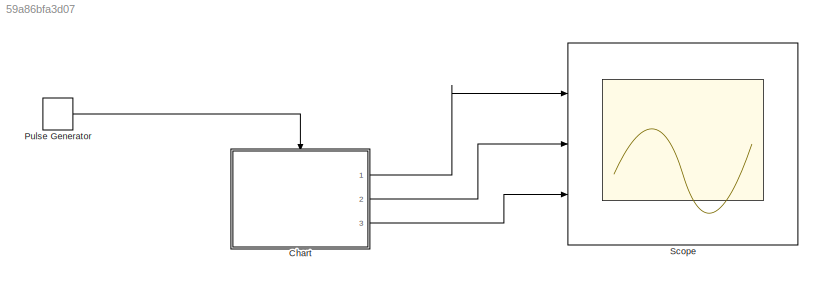
MODEL slx_59a86bfa3d07
KIND model
CONFIG AbsTol = auto
CONFIG EnableMultiTasking = off
CONFIG FixedStep = auto
CONFIG MaxStep = auto
CONFIG MinStep = auto
CONFIG RelTol = 1e-3
CONFIG SampleTimeConstraint = Unconstrained
CONFIG Solver = VariableStepAuto
CONFIG SolverName = VariableStepAuto
CONFIG StartTime = 0.0
CONFIG StopTime = 10.0
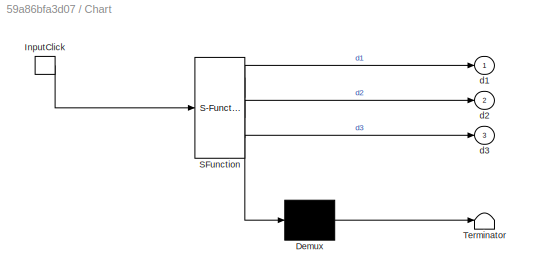
BLOCK [SubSystem] Chart
  ErrorFcn = Stateflow.Translate.translate
  PermitHierarchicalResolution = ExplicitOnly
  Ports = [0, 3, 0, 1]
  RequestExecContextInheritance = off
  SFBlockType = Chart
  TreatAsAtomicUnit = on
BLOCK [Demux] Chart/ Demux 
  Outputs = 1
  Ports = [1, 1]
BLOCK [S-Function] Chart/ SFunction 
  EnableBusSupport = on
  FunctionName = sf_sfun
  PortCounts = [1 4]
  Ports = [1, 4]
  SFcnIsStateOwnerBlock = off
  SFunctionDeploymentMode = off
  Tag = Stateflow S-Function 3
BLOCK [Terminator] Chart/ Terminator 
BLOCK [TriggerPort] Chart/InputClick
  Ports = [0, 1]
  ShowOutputPort = on
  StatesWhenEnabling = held
  VariantControl = (inherit)
BLOCK [Outport] Chart/d1
BLOCK [Outport] Chart/d2
  Port = 2
BLOCK [Outport] Chart/d3
  Port = 3
BLOCK [DiscretePulseGenerator] Pulse Generator
  Period = 0.1
  Ports = [0, 1]
  PulseType = Time based
  PulseWidth = 5
BLOCK [Scope] Scope
  Floating = off
  NumInputPorts = 3
  Ports = [3]
  ScopeSpecificationString = Simulink.scopes.TimeScopeBlockCfg('CurrentConfiguration', extmgr.ConfigurationSet(extmgr.Configuration('Core','General UI',true),extmgr.Configuration('Core','Source UI',true),extmgr.Configuration('Sources','WiredSimulink',true),extmgr.Configuration('Visuals','Time Domain',true,'SerializedDisplays',{struct('MinYLimReal','-0.5','MaxYLimReal','4.5','YLabelReal','','MinYLimMag','0.00000','MaxYLimMag',...<+2687ch>
LINE Chart:1 -> Scope:1
LINE Chart:2 -> Scope:2
LINE Chart:3 -> Scope:3
LINE Pulse Generator:1 -> Chart:trigger
CHART Chart states=18 transitions=19
  STATE_LABEL 'Digit1\n'
  STATE_LABEL 'One\nen:\nd1=1;'
  STATE_LABEL 'Two\nen:\nd1=2;'
  STATE_LABEL 'Zero\nen:\nd1=0;'
  STATE_LABEL 'Three\nen:\nd1=3;'
  STATE_LABEL 'Four\nen:\nd1=4;'
  STATE_LABEL 'InputClick'
  STATE_LABEL 'InputClick'
  STATE_LABEL 'InputClick'
  STATE_LABEL 'InputClick/{Click2}'
  STATE_LABEL 'InputClick'
  STATE_LABEL 'One\nen:\nd1=1;'
  STATE_LABEL 'Two\nen:\nd1=2;'
  STATE_LABEL 'Zero\nen:\nd1=0;'
  STATE_LABEL 'Three\nen:\nd1=3;'
  STATE_LABEL 'Four\nen:\nd1=4;'
  STATE_LABEL 'Digit2\n'
  STATE_LABEL 'One\nen:\nd2=1;'
  STATE_LABEL 'Two\nen:\nd2=2;'
  STATE_LABEL 'Zero\nen:\nd2=0;'
  STATE_LABEL 'Three\nen:\nd2=3;'
  STATE_LABEL 'Four\nen:\nd2=4;'
  STATE_LABEL 'Click2'
  STATE_LABEL 'Click2'
  STATE_LABEL 'Click2'
  STATE_LABEL 'Click2/{Click3}'
  STATE_LABEL 'Click2'
  STATE_LABEL 'One\nen:\nd2=1;'
  STATE_LABEL 'Two\nen:\nd2=2;'
  STATE_LABEL 'Zero\nen:\nd2=0;'
  STATE_LABEL 'Three\nen:\nd2=3;'
  STATE_LABEL 'Four\nen:\nd2=4;'
  STATE_LABEL 'Digit3\n'
  STATE_LABEL 'One\nen:\nd2=1;'
  STATE_LABEL 'Two\nen:\nd3=2;'
  STATE_LABEL 'Zero\nen:\nd3=0;'
  STATE_LABEL 'Three\nen:\nd3=3;'
  STATE_LABEL 'Four\nen:\nd3=4;'
  STATE_LABEL 'Click3'
  STATE_LABEL 'Click3'
CHART  states=0 transitions=0
